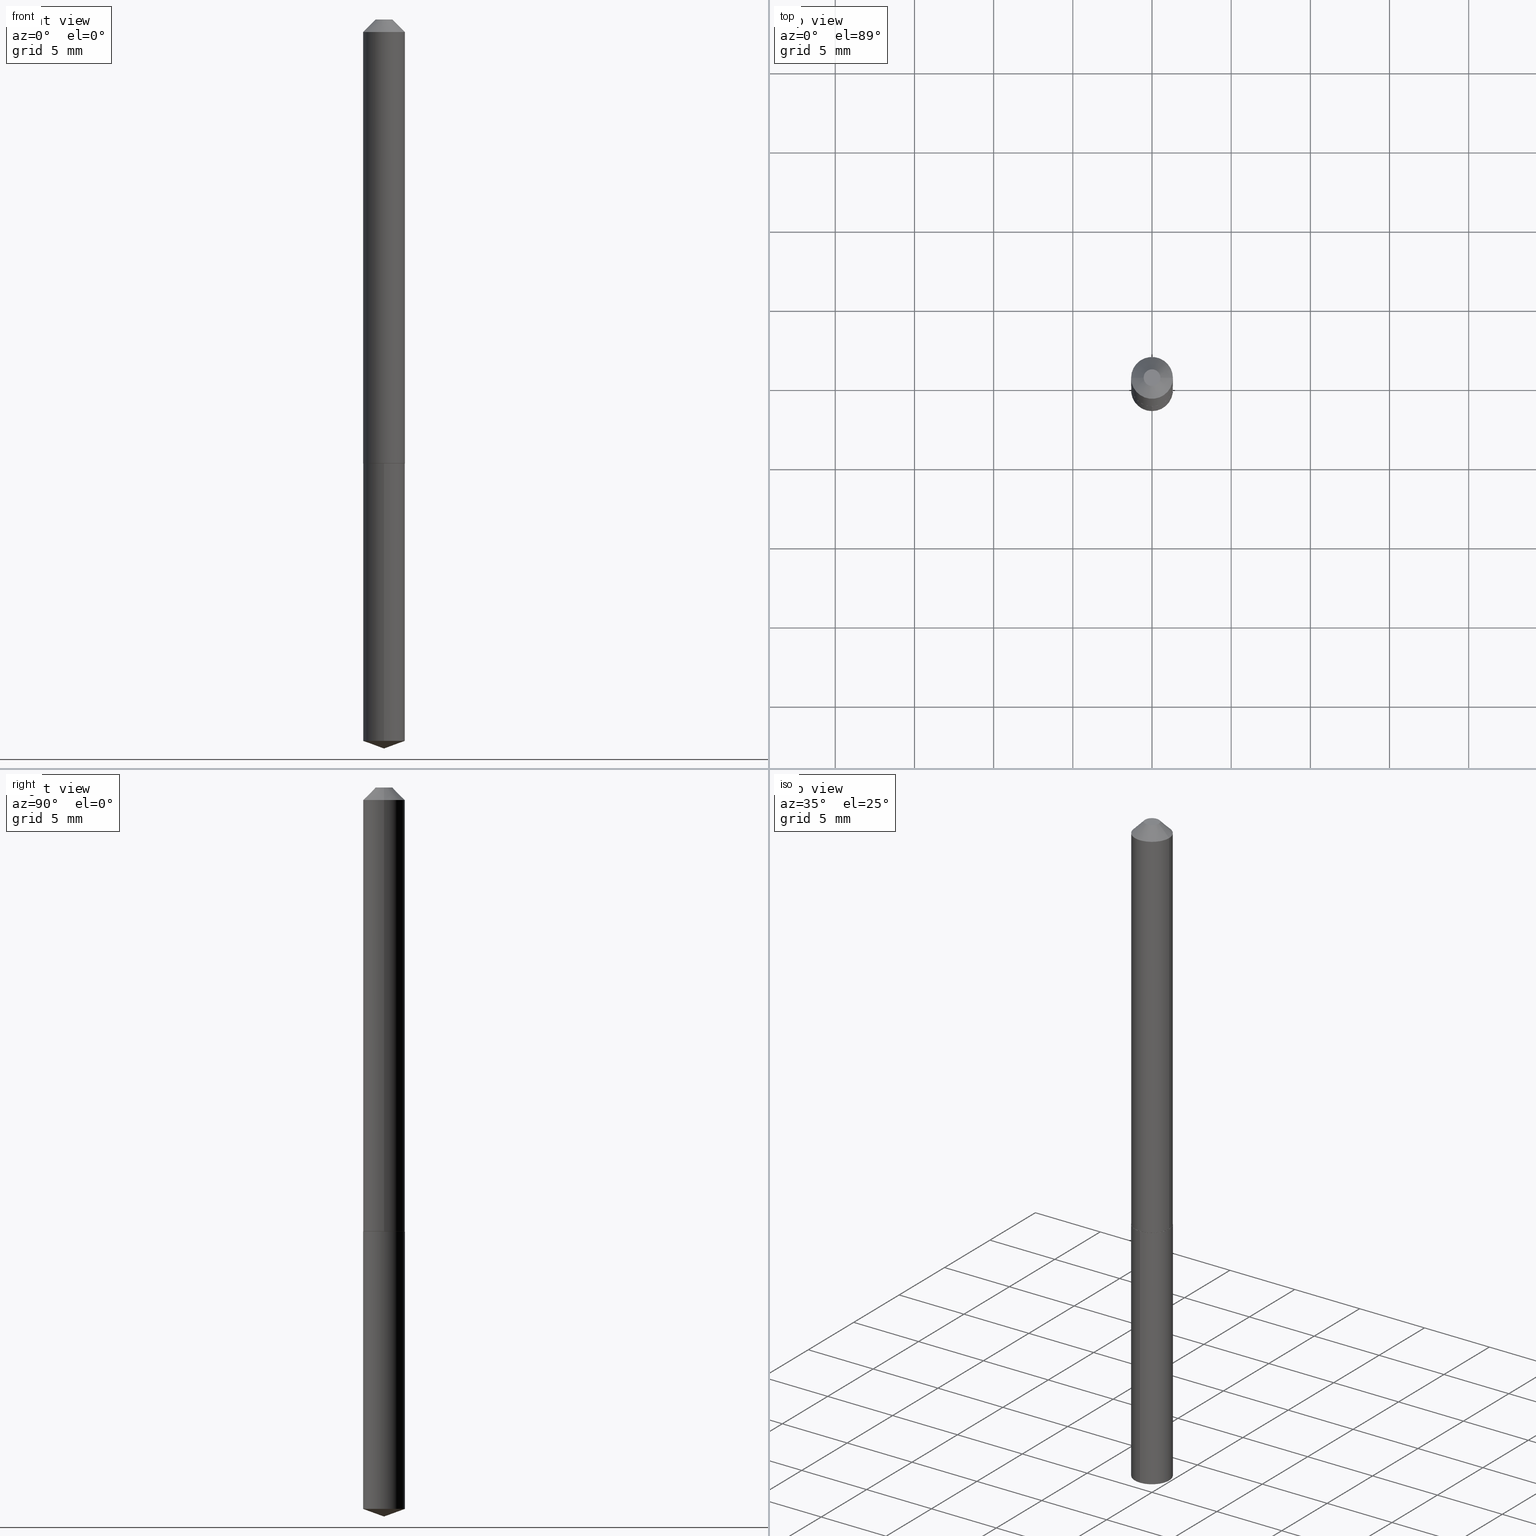
[diagram: canonical four-view strip — front | top / right | iso, engineering-drawing reading convention]
A machine part, canonical four-view strip (front | top / right | iso — engineering-drawing reading convention). The complete STEP part file that produces these views, byte-faithful:
ISO-10303-21;
HEADER;
FILE_DESCRIPTION (( 'STEP AP203' ),
    '1' );
FILE_NAME ('56246.STEP',
    '2024-04-22T21:25:25',
    ( '' ),
    ( '' ),
    'SwSTEP 2.0',
    'SolidWorks 2023',
    '' );
FILE_SCHEMA (( 'CONFIG_CONTROL_DESIGN' ));
ENDSEC;

DATA;
#1 = EDGE_CURVE ( 'NONE', #240, #31, #222, .T. ) ;
#2 = DIRECTION ( 'NONE',  ( 1.000000000000000000, -6.982962677686266711E-15, 4.876176775795935793E-29 ) ) ;
#3 = CYLINDRICAL_SURFACE ( 'NONE', #184, 0.05200000000000006700 ) ;
#4 = EDGE_CURVE ( 'NONE', #322, #31, #319, .T. ) ;
#5 = VERTEX_POINT ( 'NONE', #306 ) ;
#6 = DIRECTION ( 'NONE',  ( -2.445468806185136597E-29, 3.491481338843145583E-15, 1.000000000000000000 ) ) ;
#7 = ORIENTED_EDGE ( 'NONE', *, *, #267, .F. ) ;
#8 = PERSON_AND_ORGANIZATION_ROLE ( 'creator' ) ;
#9 = ORIENTED_EDGE ( 'NONE', *, *, #133, .F. ) ;
#10 = CIRCLE ( 'NONE', #388, 0.05200000000000000455 ) ;
#11 = LOCAL_TIME ( 17, 25, 25.00000000000000000, #107 ) ;
#12 = EDGE_CURVE ( 'NONE', #84, #72, #274, .T. ) ;
#13 = APPROVAL_ROLE ( '' ) ;
#14 =( NAMED_UNIT ( * ) SI_UNIT ( $, .STERADIAN. ) SOLID_ANGLE_UNIT ( ) );
#15 = APPROVAL_DATE_TIME ( #47, #26 ) ;
#16 = VERTEX_POINT ( 'NONE', #49 ) ;
#17 = AXIS2_PLACEMENT_3D ( 'NONE', #236, #179, #28 ) ;
#18 = AXIS2_PLACEMENT_3D ( 'NONE', #186, #158, #97 ) ;
#19 = ADVANCED_FACE ( 'NONE', ( #369 ), #86, .T. ) ;
#20 = EDGE_LOOP ( 'NONE', ( #205, #106, #214 ) ) ;
#21 = DIRECTION ( 'NONE',  ( 1.000000000000000000, -6.982962677686266711E-15, 0.000000000000000000 ) ) ;
#22 = LINE ( 'NONE', #381, #305 ) ;
#23 = CIRCLE ( 'NONE', #376, 0.02074999999999999414 ) ;
#24 = VECTOR ( 'NONE', #62, 39.37007874015748143 ) ;
#25 = APPLICATION_CONTEXT ( 'configuration controlled 3d designs of mechanical parts and assemblies' ) ;
#26 = APPROVAL ( #73, 'UNSPECIFIED' ) ;
#27 = DIRECTION ( 'NONE',  ( -2.445478414285621524E-29, 3.491467579496391943E-15, 1.000000000000000000 ) ) ;
#28 = DIRECTION ( 'NONE',  ( -6.982962677686267499E-15, -1.000000000000000000, 3.475157955500671305E-15 ) ) ;
#29 = DIRECTION ( 'NONE',  ( 1.000000000000000000, -6.982962677686265922E-15, 4.876176775795935793E-29 ) ) ;
#30 = CIRCLE ( 'NONE', #219, 0.05199999999999999067 ) ;
#31 = VERTEX_POINT ( 'NONE', #194 ) ;
#32 = CARTESIAN_POINT ( 'NONE',  ( -0.05200000000000012945, -3.483367434818158202E-15, -1.103500000000000147 ) ) ;
#33 = DIRECTION ( 'NONE',  ( -1.000000000000000000, 6.982962677686265922E-15, -4.876176775795935793E-29 ) ) ;
#34 = DIRECTION ( 'NONE',  ( -6.982962677686266711E-15, -1.000000000000000000, 2.626776916984868919E-15 ) ) ;
#35 = DIMENSIONAL_EXPONENTS ( 1.000000000000000000, 0.000000000000000000, 0.000000000000000000, 0.000000000000000000, 0.000000000000000000, 0.000000000000000000, 0.000000000000000000 ) ;
#36 = ORIENTED_EDGE ( 'NONE', *, *, #346, .F. ) ;
#37 = CONICAL_SURFACE ( 'NONE', #67, 0.05200000000000000455, 0.7853981633974450594 ) ;
#38 = DIRECTION ( 'NONE',  ( -2.445478414285621524E-29, 3.491467579496391943E-15, 1.000000000000000000 ) ) ;
#39 = CARTESIAN_POINT ( 'NONE',  ( 3.743544432386673062E-48, -5.344789307371237567E-34, -1.530808498934197508E-19 ) ) ;
#40 = DATE_AND_TIME ( #310, #11 ) ;
#41 = ORIENTED_EDGE ( 'NONE', *, *, #367, .T. ) ;
#42 = CALENDAR_DATE ( 2024, 22, 4 ) ;
#43 = ADVANCED_FACE ( 'NONE', ( #318 ), #85, .T. ) ;
#44 = CIRCLE ( 'NONE', #18, 0.05200000000000012945 ) ;
#45 = PERSON_AND_ORGANIZATION ( #119, #341 ) ;
#46 = PERSON_AND_ORGANIZATION ( #119, #341 ) ;
#47 = DATE_AND_TIME ( #197, #103 ) ;
#48 = EDGE_CURVE ( 'NONE', #5, #16, #211, .T. ) ;
#49 = CARTESIAN_POINT ( 'NONE',  ( 0.05200000000000012945, -4.215963716653098357E-15, -1.103500000000000147 ) ) ;
#50 = ORIENTED_EDGE ( 'NONE', *, *, #12, .T. ) ;
#51 = AXIS2_PLACEMENT_3D ( 'NONE', #382, #264, #384 ) ;
#52 = DIRECTION ( 'NONE',  ( -2.445478414285621524E-29, 3.491467579496391943E-15, 1.000000000000000000 ) ) ;
#53 = CARTESIAN_POINT ( 'NONE',  ( 2.699797562028391099E-29, -3.854595398082833708E-15, -1.104000000000000092 ) ) ;
#54 = ADVANCED_FACE ( 'NONE', ( #297 ), #58, .T. ) ;
#55 = CARTESIAN_POINT ( 'NONE',  ( 7.642090019328603538E-31, -1.091087918388490390E-16, -0.03125000000000021511 ) ) ;
#56 = CLOSED_SHELL ( 'NONE', ( #43, #60, #253, #159, #204 ) ) ;
#57 = APPROVAL_PERSON_ORGANIZATION ( #344, #26, #139 ) ;
#58 = CYLINDRICAL_SURFACE ( 'NONE', #354, 0.05200000000000006700 ) ;
#59 = CARTESIAN_POINT ( 'NONE',  ( 0.02074999999999999414, -3.041050105883639549E-16, -1.530808498918505513E-19 ) ) ;
#60 = ADVANCED_FACE ( 'NONE', ( #181 ), #293, .T. ) ;
#61 = EDGE_LOOP ( 'NONE', ( #91, #287, #141, #9 ) ) ;
#62 = DIRECTION ( 'NONE',  ( 6.676917655467980751E-15, 0.9396926207859114255, 0.3420201433256603307 ) ) ;
#63 = CARTESIAN_POINT ( 'NONE',  ( 0.05200000000000000455, -4.658546877229686859E-16, -0.03125000000000021511 ) ) ;
#64 = CARTESIAN_POINT ( 'NONE',  ( 4.432408411206818813E-29, -6.328315368474842651E-15, -1.812500000000000222 ) ) ;
#65 = CARTESIAN_POINT ( 'NONE',  ( 4.432429625892689766E-29, -6.328284987837211062E-15, -1.812500000000000222 ) ) ;
#66 = ORIENTED_EDGE ( 'NONE', *, *, #104, .F. ) ;
#67 = AXIS2_PLACEMENT_3D ( 'NONE', #207, #121, #81 ) ;
#68 = DIRECTION ( 'NONE',  ( -2.445468806185136877E-29, 3.491481338843145188E-15, 1.000000000000000000 ) ) ;
#69 = ORIENTED_EDGE ( 'NONE', *, *, #332, .F. ) ;
#70 = APPLICATION_PROTOCOL_DEFINITION ( 'international standard', 'config_control_design', 1994, #212 ) ;
#71 = ADVANCED_FACE ( 'NONE', ( #149 ), #191, .T. ) ;
#72 = VERTEX_POINT ( 'NONE', #176 ) ;
#73 = APPROVAL_STATUS ( 'not_yet_approved' ) ;
#74 = CIRCLE ( 'NONE', #138, 0.05200000000000000455 ) ;
#75 = APPROVAL_STATUS ( 'not_yet_approved' ) ;
#76 = COORDINATED_UNIVERSAL_TIME_OFFSET ( 5, 0, .BEHIND. ) ;
#77 = SHAPE_DEFINITION_REPRESENTATION ( #217, #276 ) ;
#78 = ORIENTED_EDGE ( 'NONE', *, *, #117, .T. ) ;
#79 = AXIS2_PLACEMENT_3D ( 'NONE', #125, #221, #277 ) ;
#80 = DIRECTION ( 'NONE',  ( -2.445478414285621524E-29, 3.491467579496391943E-15, 1.000000000000000000 ) ) ;
#81 = DIRECTION ( 'NONE',  ( -1.000000000000000000, 6.982962677686266711E-15, 0.000000000000000000 ) ) ;
#82 = CC_DESIGN_DATE_AND_TIME_ASSIGNMENT ( #373, #202, ( #198 ) ) ;
#83 = FACE_OUTER_BOUND ( 'NONE', #61, .T. ) ;
#84 = VERTEX_POINT ( 'NONE', #59 ) ;
#85 = CYLINDRICAL_SURFACE ( 'NONE', #262, 0.05199999999999999067 ) ;
#86 = CONICAL_SURFACE ( 'NONE', #199, 0.05200000000000012945, 0.7853981633976275800 ) ;
#87 = ADVANCED_FACE ( 'NONE', ( #266 ), #37, .T. ) ;
#88 = CARTESIAN_POINT ( 'NONE',  ( -0.05200000000000012945, -3.483367434818158202E-15, -1.103500000000000147 ) ) ;
#89 = ORIENTED_EDGE ( 'NONE', *, *, #263, .T. ) ;
#90 = DIRECTION ( 'NONE',  ( -2.445478414285621524E-29, 3.491467579496391943E-15, 1.000000000000000000 ) ) ;
#91 = ORIENTED_EDGE ( 'NONE', *, *, #137, .F. ) ;
#92 = LINE ( 'NONE', #63, #220 ) ;
#93 = LOCAL_TIME ( 17, 25, 25.00000000000000000, #232 ) ;
#94 = PLANE ( 'NONE',  #79 ) ;
#95 = CC_DESIGN_DATE_AND_TIME_ASSIGNMENT ( #109, #163, ( #362 ) ) ;
#96 = VERTEX_POINT ( 'NONE', #265 ) ;
#97 = DIRECTION ( 'NONE',  ( 1.000000000000000000, -6.982962677686269077E-15, 0.000000000000000000 ) ) ;
#98 = MANIFOLD_SOLID_BREP ( 'Body-Move/Copy2[2]', #288 ) ;
#99 = EDGE_LOOP ( 'NONE', ( #366, #50 ) ) ;
#100 = DIRECTION ( 'NONE',  ( -2.445468806185136597E-29, 3.491481338843145583E-15, 1.000000000000000000 ) ) ;
#101 = DIRECTION ( 'NONE',  ( -2.445468806185136597E-29, 3.491481338843145583E-15, 1.000000000000000000 ) ) ;
#102 = CONICAL_SURFACE ( 'NONE', #314, 108.1684023407349855, 1.221730476396036158 ) ;
#103 = LOCAL_TIME ( 17, 25, 25.00000000000000000, #375 ) ;
#104 = EDGE_CURVE ( 'NONE', #31, #338, #115, .T. ) ;
#105 = APPROVAL_STATUS ( 'not_yet_approved' ) ;
#106 = ORIENTED_EDGE ( 'NONE', *, *, #1, .T. ) ;
#107 = COORDINATED_UNIVERSAL_TIME_OFFSET ( 5, 0, .BEHIND. ) ;
#108 = APPLICATION_PROTOCOL_DEFINITION ( 'international standard', 'config_control_design', 1994, #25 ) ;
#109 = DATE_AND_TIME ( #42, #93 ) ;
#110 = UNCERTAINTY_MEASURE_WITH_UNIT (LENGTH_MEASURE( 1.000000000000000082E-05 ), #254, 'distance_accuracy_value', 'NONE');
#111 = CALENDAR_DATE ( 2024, 22, 4 ) ;
#112 = ORIENTED_EDGE ( 'NONE', *, *, #301, .T. ) ;
#113 = CARTESIAN_POINT ( 'NONE',  ( 7.642090019328603538E-31, -1.091087918388490390E-16, -0.03125000000000021511 ) ) ;
#114 = DIRECTION ( 'NONE',  ( -0.7071067811866742492, 7.493145998870811699E-15, 0.7071067811864207853 ) ) ;
#115 = LINE ( 'NONE', #351, #348 ) ;
#116 = CARTESIAN_POINT ( 'NONE',  ( 2.698574827625298297E-29, -3.852849657413411415E-15, -1.103500000000000147 ) ) ;
#117 = EDGE_CURVE ( 'NONE', #5, #96, #183, .T. ) ;
#118 = EDGE_LOOP ( 'NONE', ( #372, #162, #329, #171 ) ) ;
#119 = PERSON ( 'UNSPECIFIED', 'UNSPECIFIED', 'UNSPECIFIED', ('UNSPECIFIED'), ('UNSPECIFIED'), ('UNSPECIFIED') ) ;
#120 = DESIGN_CONTEXT ( 'detailed design', #212, 'design' ) ;
#121 = DIRECTION ( 'NONE',  ( 2.445468806185136597E-29, -3.491481338843145583E-15, -1.000000000000000000 ) ) ;
#122 = AXIS2_PLACEMENT_3D ( 'NONE', #312, #188, #331 ) ;
#123 = CC_DESIGN_APPROVAL ( #238, ( #283 ) ) ;
#124 = ORIENTED_EDGE ( 'NONE', *, *, #301, .F. ) ;
#125 = CARTESIAN_POINT ( 'NONE',  ( 2.699797562028391099E-29, -3.854595398082833708E-15, -1.104000000000000092 ) ) ;
#126 = DIRECTION ( 'NONE',  ( -6.982962677686266711E-15, -1.000000000000000000, 5.253553833969737838E-15 ) ) ;
#127 = CARTESIAN_POINT ( 'NONE',  ( 4.432429811920442452E-29, -6.328284987837211851E-15, -1.812500000000000222 ) ) ;
#128 = EDGE_CURVE ( 'NONE', #72, #84, #23, .T. ) ;
#129 = DIRECTION ( 'NONE',  ( -6.982962677686266711E-15, -1.000000000000000000, 2.626776916984868919E-15 ) ) ;
#130 = EDGE_LOOP ( 'NONE', ( #78, #233, #134, #140 ) ) ;
#131 = CARTESIAN_POINT ( 'NONE',  ( 2.699797562028391099E-29, -3.854595398082832919E-15, -1.104000000000000092 ) ) ;
#132 = ORIENTED_EDGE ( 'NONE', *, *, #216, .T. ) ;
#133 = EDGE_CURVE ( 'NONE', #280, #16, #340, .T. ) ;
#134 = ORIENTED_EDGE ( 'NONE', *, *, #281, .F. ) ;
#135 = CIRCLE ( 'NONE', #282, 0.05199999999999999067 ) ;
#136 =( NAMED_UNIT ( * ) PLANE_ANGLE_UNIT ( ) SI_UNIT ( $, .RADIAN. ) );
#137 = EDGE_CURVE ( 'NONE', #96, #280, #356, .T. ) ;
#138 = AXIS2_PLACEMENT_3D ( 'NONE', #113, #347, #21 ) ;
#139 = APPROVAL_ROLE ( '' ) ;
#140 = ORIENTED_EDGE ( 'NONE', *, *, #48, .F. ) ;
#141 = ORIENTED_EDGE ( 'NONE', *, *, #48, .T. ) ;
#142 = ADVANCED_FACE ( 'NONE', ( #350 ), #145, .F. ) ;
#143 = DIRECTION ( 'NONE',  ( 1.000000000000000000, -6.982962677686266711E-15, 4.876176775795935793E-29 ) ) ;
#144 = VECTOR ( 'NONE', #196, 39.37007874015748854 ) ;
#145 = PLANE ( 'NONE',  #175 ) ;
#146 = AXIS2_PLACEMENT_3D ( 'NONE', #302, #215, #34 ) ;
#147 = DIRECTION ( 'NONE',  ( 1.000000000000000000, -6.982962677686265922E-15, 4.876174938203531473E-29 ) ) ;
#148 = CC_DESIGN_PERSON_AND_ORGANIZATION_ASSIGNMENT ( #46, #284, ( #283 ) ) ;
#149 = FACE_OUTER_BOUND ( 'NONE', #249, .T. ) ;
#150 = ORIENTED_EDGE ( 'NONE', *, *, #346, .T. ) ;
#151 = CARTESIAN_POINT ( 'NONE',  ( 3.694822225952959601E-16, 0.05199999999999374567, -1.793573547818158254 ) ) ;
#152 = CARTESIAN_POINT ( 'NONE',  ( 1.871772216193336531E-48, -2.672394653685618784E-34, -7.654042494670987541E-20 ) ) ;
#153 = CC_DESIGN_PERSON_AND_ORGANIZATION_ASSIGNMENT ( #339, #203, ( #270 ) ) ;
#154 = DIRECTION ( 'NONE',  ( 1.000000000000000000, -6.982962677686266711E-15, 0.000000000000000000 ) ) ;
#155 =( LENGTH_UNIT ( ) NAMED_UNIT ( * ) SI_UNIT ( $, .METRE. ) );
#156 = VECTOR ( 'NONE', #173, 39.37007874015748143 ) ;
#157 = ORIENTED_EDGE ( 'NONE', *, *, #128, .F. ) ;
#158 = DIRECTION ( 'NONE',  ( -2.445468806185136597E-29, 3.491481338843145583E-15, 1.000000000000000000 ) ) ;
#159 = ADVANCED_FACE ( 'NONE', ( #213 ), #317, .T. ) ;
#160 = DIRECTION ( 'NONE',  ( -2.445468806185136597E-29, 3.491481338843145583E-15, 1.000000000000000000 ) ) ;
#161 = APPROVAL_DATE_TIME ( #201, #185 ) ;
#162 = ORIENTED_EDGE ( 'NONE', *, *, #133, .T. ) ;
#163 = DATE_TIME_ROLE ( 'classification_date' ) ;
#164 = PERSON_AND_ORGANIZATION ( #119, #341 ) ;
#165 = EDGE_CURVE ( 'NONE', #72, #180, #22, .T. ) ;
#166 = APPROVAL_DATE_TIME ( #40, #238 ) ;
#167 = APPROVAL_ROLE ( '' ) ;
#168 = CARTESIAN_POINT ( 'NONE',  ( 2.698574827625298297E-29, -3.852849657413411415E-15, -1.103500000000000147 ) ) ;
#169 = VECTOR ( 'NONE', #114, 39.37007874015748143 ) ;
#170 = VECTOR ( 'NONE', #368, 39.37007874015748143 ) ;
#171 = ORIENTED_EDGE ( 'NONE', *, *, #216, .F. ) ;
#172 = EDGE_CURVE ( 'NONE', #308, #180, #74, .T. ) ;
#173 = DIRECTION ( 'NONE',  ( 0.7071067811866742492, -2.468850131083584319E-15, 0.7071067811864207853 ) ) ;
#174 = DIRECTION ( 'NONE',  ( -1.000000000000000000, 6.982962677686266711E-15, 0.000000000000000000 ) ) ;
#175 = AXIS2_PLACEMENT_3D ( 'NONE', #352, #315, #29 ) ;
#176 = CARTESIAN_POINT ( 'NONE',  ( -0.02074999999999999414, 1.994508714814133894E-16, -1.530808498946235774E-19 ) ) ;
#177 = APPROVAL_PERSON_ORGANIZATION ( #286, #238, #13 ) ;
#178 = ORIENTED_EDGE ( 'NONE', *, *, #104, .T. ) ;
#179 = DIRECTION ( 'NONE',  ( -2.445478414285621524E-29, 3.491467579496391943E-15, 1.000000000000000000 ) ) ;
#180 = VERTEX_POINT ( 'NONE', #261 ) ;
#181 = FACE_OUTER_BOUND ( 'NONE', #296, .T. ) ;
#182 = CARTESIAN_POINT ( 'NONE',  ( 3.694822225952789996E-16, 0.05199999999999613265, -1.104000000000000314 ) ) ;
#183 = CIRCLE ( 'NONE', #334, 0.05150000000000005268 ) ;
#184 = AXIS2_PLACEMENT_3D ( 'NONE', #190, #6, #2 ) ;
#185 = APPROVAL ( #75, 'UNSPECIFIED' ) ;
#186 = CARTESIAN_POINT ( 'NONE',  ( 2.698574827625298297E-29, -3.852849657413411415E-15, -1.103500000000000147 ) ) ;
#187 = CARTESIAN_POINT ( 'NONE',  ( 2.699797562028391099E-29, -3.854595398082833708E-15, -1.104000000000000092 ) ) ;
#188 = DIRECTION ( 'NONE',  ( -2.445478414285621524E-29, 3.491467579496391943E-15, 1.000000000000000000 ) ) ;
#189 = ADVANCED_FACE ( 'NONE', ( #83 ), #226, .T. ) ;
#190 = CARTESIAN_POINT ( 'NONE',  ( 0.000000000000000000, 0.000000000000000000, 0.000000000000000000 ) ) ;
#191 = CONICAL_SURFACE ( 'NONE', #241, 0.05200000000000000455, 0.7853981633974450594 ) ;
#192 = ORIENTED_EDGE ( 'NONE', *, *, #165, .F. ) ;
#193 = DIRECTION ( 'NONE',  ( 2.438088387897960049E-29, -3.491481338843145188E-15, -1.000000000000000000 ) ) ;
#194 = CARTESIAN_POINT ( 'NONE',  ( -3.631140592396419767E-16, -0.05200000000000627731, -1.793573547818157587 ) ) ;
#195 = PERSON_AND_ORGANIZATION ( #119, #341 ) ;
#196 = DIRECTION ( 'NONE',  ( -6.561838499445213473E-15, -0.9396926207859090940, 0.3420201433256668810 ) ) ;
#197 = CALENDAR_DATE ( 2024, 22, 4 ) ;
#198 = PRODUCT_DEFINITION ( 'UNKNOWN', '', #283, #120 ) ;
#199 = AXIS2_PLACEMENT_3D ( 'NONE', #168, #101, #336 ) ;
#200 = VECTOR ( 'NONE', #300, 39.37007874015748143 ) ;
#201 = DATE_AND_TIME ( #343, #257 ) ;
#202 = DATE_TIME_ROLE ( 'creation_date' ) ;
#203 = PERSON_AND_ORGANIZATION_ROLE ( 'design_owner' ) ;
#204 = ADVANCED_FACE ( 'NONE', ( #365 ), #94, .F. ) ;
#205 = ORIENTED_EDGE ( 'NONE', *, *, #367, .F. ) ;
#206 = AXIS2_PLACEMENT_3D ( 'NONE', #131, #100, #248 ) ;
#207 = CARTESIAN_POINT ( 'NONE',  ( 7.642090019328603538E-31, -1.091087918388490390E-16, -0.03125000000000021511 ) ) ;
#208 = DIRECTION ( 'NONE',  ( -2.445468806185136597E-29, 3.491481338843145583E-15, 1.000000000000000000 ) ) ;
#209 = DIRECTION ( 'NONE',  ( -2.445468806185136597E-29, 3.491481338843145583E-15, 1.000000000000000000 ) ) ;
#210 = ORIENTED_EDGE ( 'NONE', *, *, #12, .F. ) ;
#211 = LINE ( 'NONE', #321, #156 ) ;
#212 = APPLICATION_CONTEXT ( 'configuration controlled 3d designs of mechanical parts and assemblies' ) ;
#213 = FACE_OUTER_BOUND ( 'NONE', #278, .T. ) ;
#214 = ORIENTED_EDGE ( 'NONE', *, *, #4, .F. ) ;
#215 = DIRECTION ( 'NONE',  ( -2.445478414285621524E-29, 3.491467579496391943E-15, 1.000000000000000000 ) ) ;
#216 = EDGE_CURVE ( 'NONE', #180, #308, #10, .T. ) ;
#217 = PRODUCT_DEFINITION_SHAPE ( 'NONE', 'NONE',  #198 ) ;
#218 = ORIENTED_EDGE ( 'NONE', *, *, #256, .F. ) ;
#219 = AXIS2_PLACEMENT_3D ( 'NONE', #187, #38, #129 ) ;
#220 = VECTOR ( 'NONE', #269, 39.37007874015748143 ) ;
#221 = DIRECTION ( 'NONE',  ( 2.445478414285621244E-29, -3.491467579496391943E-15, -1.000000000000000000 ) ) ;
#222 = LINE ( 'NONE', #64, #144 ) ;
#223 = LINE ( 'NONE', #182, #170 ) ;
#224 = EDGE_LOOP ( 'NONE', ( #69, #157, #353, #132 ) ) ;
#225 = CARTESIAN_POINT ( 'NONE',  ( 0.05200000000000000455, -4.722228510785349578E-16, -0.03125000000000021511 ) ) ;
#226 = CONICAL_SURFACE ( 'NONE', #51, 0.05200000000000012945, 0.7853981633976275800 ) ;
#227 = ORIENTED_EDGE ( 'NONE', *, *, #172, .T. ) ;
#228 = CC_DESIGN_SECURITY_CLASSIFICATION ( #362, ( #283 ) ) ;
#229 = ORIENTED_EDGE ( 'NONE', *, *, #263, .F. ) ;
#230 = SECURITY_CLASSIFICATION_LEVEL ( 'unclassified' ) ;
#231 = CARTESIAN_POINT ( 'NONE',  ( 0.000000000000000000, 0.000000000000000000, 0.000000000000000000 ) ) ;
#232 = COORDINATED_UNIVERSAL_TIME_OFFSET ( 5, 0, .BEHIND. ) ;
#233 = ORIENTED_EDGE ( 'NONE', *, *, #137, .T. ) ;
#234 = DIRECTION ( 'NONE',  ( -2.445468806185136597E-29, 3.491481338843145583E-15, 1.000000000000000000 ) ) ;
#235 = MANIFOLD_SOLID_BREP ( 'Body-Move/Copy2[1]', #56 ) ;
#236 = CARTESIAN_POINT ( 'NONE',  ( -9.184625870923062997E-28, 1.311310533453239735E-13, 37.55757874015748143 ) ) ;
#237 = CARTESIAN_POINT ( 'NONE',  ( 3.743544432386673062E-48, -5.344789307371237567E-34, -1.530808498934197508E-19 ) ) ;
#238 = APPROVAL ( #105, 'UNSPECIFIED' ) ;
#239 = CARTESIAN_POINT ( 'NONE',  ( 2.699797562028391099E-29, -3.854595398082833708E-15, -1.104000000000000092 ) ) ;
#240 = VERTEX_POINT ( 'NONE', #65 ) ;
#241 = AXIS2_PLACEMENT_3D ( 'NONE', #55, #323, #174 ) ;
#242 = DIRECTION ( 'NONE',  ( 1.000000000000000000, -6.982962677686269077E-15, 0.000000000000000000 ) ) ;
#243 =( GEOMETRIC_REPRESENTATION_CONTEXT ( 3 ) GLOBAL_UNCERTAINTY_ASSIGNED_CONTEXT ( ( #110 ) ) GLOBAL_UNIT_ASSIGNED_CONTEXT ( ( #254, #136, #14 ) ) REPRESENTATION_CONTEXT ( 'NONE', 'WORKASPACE' ) );
#244 = PLANE ( 'NONE',  #383 ) ;
#245 = DIRECTION ( 'NONE',  ( -2.445468806185136597E-29, 3.491481338843145583E-15, 1.000000000000000000 ) ) ;
#246 = LENGTH_MEASURE_WITH_UNIT ( LENGTH_MEASURE( 0.02539999999999999897 ), #155 );
#247 = AXIS2_PLACEMENT_3D ( 'NONE', #53, #80, #260 ) ;
#248 = DIRECTION ( 'NONE',  ( 1.000000000000000000, -6.982962677686269077E-15, 0.000000000000000000 ) ) ;
#249 = EDGE_LOOP ( 'NONE', ( #210, #313, #227, #192 ) ) ;
#250 = CARTESIAN_POINT ( 'NONE',  ( 4.386134788280050276E-29, -6.262219083968236584E-15, -1.793573547818158032 ) ) ;
#251 = DIRECTION ( 'NONE',  ( 1.000000000000000000, -6.982962677686265922E-15, 4.876174938203531473E-29 ) ) ;
#252 = ORIENTED_EDGE ( 'NONE', *, *, #316, .T. ) ;
#253 = ADVANCED_FACE ( 'NONE', ( #273 ), #102, .T. ) ;
#254 =( CONVERSION_BASED_UNIT ( 'INCH', #246 ) LENGTH_UNIT ( ) NAMED_UNIT ( #35 ) );
#255 = MECHANICAL_CONTEXT ( 'NONE', #25, 'mechanical' ) ;
#256 = EDGE_CURVE ( 'NONE', #96, #5, #268, .T. ) ;
#257 = LOCAL_TIME ( 17, 25, 25.00000000000000000, #337 ) ;
#258 = DIRECTION ( 'NONE',  ( 1.000000000000000000, 0.000000000000000000, 0.000000000000000000 ) ) ;
#259 = ORIENTED_EDGE ( 'NONE', *, *, #172, .F. ) ;
#260 = DIRECTION ( 'NONE',  ( -6.982962677686266711E-15, -1.000000000000000000, 2.626776916984868919E-15 ) ) ;
#261 = CARTESIAN_POINT ( 'NONE',  ( -0.05200000000000000455, -1.611497002030876847E-15, -0.03125000000000021511 ) ) ;
#262 = AXIS2_PLACEMENT_3D ( 'NONE', #239, #52, #295 ) ;
#263 = EDGE_CURVE ( 'NONE', #338, #379, #30, .T. ) ;
#264 = DIRECTION ( 'NONE',  ( -2.445468806185136597E-29, 3.491481338843145583E-15, 1.000000000000000000 ) ) ;
#265 = CARTESIAN_POINT ( 'NONE',  ( -0.05150000000000005268, -3.486016661992269797E-15, -1.104000000000000092 ) ) ;
#266 = FACE_OUTER_BOUND ( 'NONE', #224, .T. ) ;
#267 = EDGE_CURVE ( 'NONE', #31, #322, #135, .T. ) ;
#268 = CIRCLE ( 'NONE', #206, 0.05150000000000005268 ) ;
#269 = DIRECTION ( 'NONE',  ( 0.7071067811865452413, -7.319954787623248157E-15, -0.7071067811865497932 ) ) ;
#270 = PRODUCT ( '56246', '56246', '', ( #255 ) ) ;
#271 = CARTESIAN_POINT ( 'NONE',  ( 3.694822225952959601E-16, 0.05199999999999613265, -1.104000000000000314 ) ) ;
#272 = LINE ( 'NONE', #127, #24 ) ;
#273 = FACE_OUTER_BOUND ( 'NONE', #20, .T. ) ;
#274 = CIRCLE ( 'NONE', #361, 0.02074999999999999414 ) ;
#275 = EDGE_LOOP ( 'NONE', ( #89, #150 ) ) ;
#276 = ADVANCED_BREP_SHAPE_REPRESENTATION ( '56246', ( #235, #98, #335 ), #243 ) ;
#277 = DIRECTION ( 'NONE',  ( 6.982962677686265922E-15, 1.000000000000000000, -3.491467579496391943E-15 ) ) ;
#278 = EDGE_LOOP ( 'NONE', ( #124, #303, #178, #36 ) ) ;
#279 = DIRECTION ( 'NONE',  ( 0.000000000000000000, 0.000000000000000000, 1.000000000000000000 ) ) ;
#280 = VERTEX_POINT ( 'NONE', #32 ) ;
#281 = EDGE_CURVE ( 'NONE', #16, #280, #44, .T. ) ;
#282 = AXIS2_PLACEMENT_3D ( 'NONE', #250, #90, #126 ) ;
#283 = PRODUCT_DEFINITION_FORMATION_WITH_SPECIFIED_SOURCE ( 'ANY', '', #270, .NOT_KNOWN. ) ;
#284 = PERSON_AND_ORGANIZATION_ROLE ( 'design_supplier' ) ;
#285 = ADVANCED_FACE ( 'NONE', ( #307 ), #3, .T. ) ;
#286 = PERSON_AND_ORGANIZATION ( #119, #341 ) ;
#287 = ORIENTED_EDGE ( 'NONE', *, *, #256, .T. ) ;
#288 = CLOSED_SHELL ( 'NONE', ( #71, #54, #19, #142, #189, #285, #87, #320 ) ) ;
#289 = CC_DESIGN_APPROVAL ( #26, ( #362 ) ) ;
#290 = ORIENTED_EDGE ( 'NONE', *, *, #1, .F. ) ;
#291 = DIRECTION ( 'NONE',  ( -0.7071067811865452413, 2.468850131082233000E-15, -0.7071067811865497932 ) ) ;
#292 = DIRECTION ( 'NONE',  ( 1.000000000000000000, -6.982962677686269077E-15, 0.000000000000000000 ) ) ;
#293 = CONICAL_SURFACE ( 'NONE', #17, 108.1684023407349855, 1.221730476396036158 ) ;
#294 = CIRCLE ( 'NONE', #146, 0.05199999999999999067 ) ;
#295 = DIRECTION ( 'NONE',  ( -6.982962677686266711E-15, -1.000000000000000000, 2.626776916984868919E-15 ) ) ;
#296 = EDGE_LOOP ( 'NONE', ( #290, #41, #7 ) ) ;
#297 = FACE_OUTER_BOUND ( 'NONE', #364, .T. ) ;
#298 = DIRECTION ( 'NONE',  ( -2.445468806185136597E-29, 3.491481338843145583E-15, 1.000000000000000000 ) ) ;
#299 = ORIENTED_EDGE ( 'NONE', *, *, #281, .T. ) ;
#300 = DIRECTION ( 'NONE',  ( -2.445468806185136877E-29, 3.491481338843145188E-15, 1.000000000000000000 ) ) ;
#301 = EDGE_CURVE ( 'NONE', #322, #379, #223, .T. ) ;
#302 = CARTESIAN_POINT ( 'NONE',  ( 2.699797562028391099E-29, -3.854595398082833708E-15, -1.104000000000000092 ) ) ;
#303 = ORIENTED_EDGE ( 'NONE', *, *, #4, .T. ) ;
#304 = FACE_OUTER_BOUND ( 'NONE', #99, .T. ) ;
#305 = VECTOR ( 'NONE', #291, 39.37007874015748143 ) ;
#306 = CARTESIAN_POINT ( 'NONE',  ( 0.05150000000000005268, -4.214217975983676065E-15, -1.104000000000000092 ) ) ;
#307 = FACE_OUTER_BOUND ( 'NONE', #118, .T. ) ;
#308 = VERTEX_POINT ( 'NONE', #225 ) ;
#309 = PERSON_AND_ORGANIZATION_ROLE ( 'classification_officer' ) ;
#310 = CALENDAR_DATE ( 2024, 22, 4 ) ;
#311 = CC_DESIGN_PERSON_AND_ORGANIZATION_ASSIGNMENT ( #164, #309, ( #362 ) ) ;
#312 = CARTESIAN_POINT ( 'NONE',  ( 4.386134788280050276E-29, -6.262219083968236584E-15, -1.793573547818158032 ) ) ;
#313 = ORIENTED_EDGE ( 'NONE', *, *, #332, .T. ) ;
#314 = AXIS2_PLACEMENT_3D ( 'NONE', #333, #330, #358 ) ;
#315 = DIRECTION ( 'NONE',  ( -2.438088387897960049E-29, 3.491481338843145188E-15, 1.000000000000000000 ) ) ;
#316 = EDGE_CURVE ( 'NONE', #280, #180, #328, .T. ) ;
#317 = CYLINDRICAL_SURFACE ( 'NONE', #247, 0.05199999999999999067 ) ;
#318 = FACE_OUTER_BOUND ( 'NONE', #387, .T. ) ;
#319 = CIRCLE ( 'NONE', #122, 0.05199999999999999067 ) ;
#320 = ADVANCED_FACE ( 'NONE', ( #304 ), #244, .F. ) ;
#321 = CARTESIAN_POINT ( 'NONE',  ( 0.05200000000000012945, -4.215963716653098357E-15, -1.103500000000000147 ) ) ;
#322 = VERTEX_POINT ( 'NONE', #151 ) ;
#323 = DIRECTION ( 'NONE',  ( 2.445468806185136597E-29, -3.491481338843145583E-15, -1.000000000000000000 ) ) ;
#324 = ORIENTED_EDGE ( 'NONE', *, *, #267, .T. ) ;
#325 = CARTESIAN_POINT ( 'NONE',  ( -3.631140592396587893E-16, -0.05200000000000384870, -1.104000000000000092 ) ) ;
#326 = ORIENTED_EDGE ( 'NONE', *, *, #117, .F. ) ;
#327 = LINE ( 'NONE', #390, #200 ) ;
#328 = LINE ( 'NONE', #363, #377 ) ;
#329 = ORIENTED_EDGE ( 'NONE', *, *, #374, .T. ) ;
#330 = DIRECTION ( 'NONE',  ( -2.445478414285621524E-29, 3.491467579496391943E-15, 1.000000000000000000 ) ) ;
#331 = DIRECTION ( 'NONE',  ( -6.982962677686266711E-15, -1.000000000000000000, 5.253553833969737838E-15 ) ) ;
#332 = EDGE_CURVE ( 'NONE', #84, #308, #92, .T. ) ;
#333 = CARTESIAN_POINT ( 'NONE',  ( -9.184625870923062997E-28, 1.311310533453239735E-13, 37.55757874015748143 ) ) ;
#334 = AXIS2_PLACEMENT_3D ( 'NONE', #385, #208, #242 ) ;
#335 = AXIS2_PLACEMENT_3D ( 'NONE', #231, #279, #258 ) ;
#336 = DIRECTION ( 'NONE',  ( 1.000000000000000000, -6.982962677686269077E-15, 0.000000000000000000 ) ) ;
#337 = COORDINATED_UNIVERSAL_TIME_OFFSET ( 5, 0, .BEHIND. ) ;
#338 = VERTEX_POINT ( 'NONE', #325 ) ;
#339 = PERSON_AND_ORGANIZATION ( #119, #341 ) ;
#340 = CIRCLE ( 'NONE', #370, 0.05200000000000012945 ) ;
#341 = ORGANIZATION ( 'UNSPECIFIED', 'UNSPECIFIED', '' ) ;
#342 = PRODUCT_RELATED_PRODUCT_CATEGORY ( 'detail', '', ( #270 ) ) ;
#343 = CALENDAR_DATE ( 2024, 22, 4 ) ;
#344 = PERSON_AND_ORGANIZATION ( #119, #341 ) ;
#345 = EDGE_LOOP ( 'NONE', ( #326, #218 ) ) ;
#346 = EDGE_CURVE ( 'NONE', #379, #338, #294, .T. ) ;
#347 = DIRECTION ( 'NONE',  ( -2.445468806185136597E-29, 3.491481338843145583E-15, 1.000000000000000000 ) ) ;
#348 = VECTOR ( 'NONE', #27, 39.37007874015748143 ) ;
#349 = APPROVAL_PERSON_ORGANIZATION ( #45, #185, #167 ) ;
#350 = FACE_OUTER_BOUND ( 'NONE', #345, .T. ) ;
#351 = CARTESIAN_POINT ( 'NONE',  ( -3.631140592396587893E-16, -0.05200000000000384870, -1.104000000000000092 ) ) ;
#352 = CARTESIAN_POINT ( 'NONE',  ( 2.699797562028391099E-29, -3.854595398082832919E-15, -1.104000000000000092 ) ) ;
#353 = ORIENTED_EDGE ( 'NONE', *, *, #165, .T. ) ;
#354 = AXIS2_PLACEMENT_3D ( 'NONE', #386, #234, #143 ) ;
#355 = LOCAL_TIME ( 17, 25, 25.00000000000000000, #76 ) ;
#356 = LINE ( 'NONE', #88, #169 ) ;
#357 = ORIENTED_EDGE ( 'NONE', *, *, #374, .F. ) ;
#358 = DIRECTION ( 'NONE',  ( -6.982962677686267499E-15, -1.000000000000000000, 3.475157955500671305E-15 ) ) ;
#359 = CARTESIAN_POINT ( 'NONE',  ( 7.642090019328603538E-31, -1.091087918388490390E-16, -0.03125000000000021511 ) ) ;
#360 = CC_DESIGN_PERSON_AND_ORGANIZATION_ASSIGNMENT ( #371, #378, ( #198 ) ) ;
#361 = AXIS2_PLACEMENT_3D ( 'NONE', #39, #160, #251 ) ;
#362 = SECURITY_CLASSIFICATION ( '', '', #230 ) ;
#363 = CARTESIAN_POINT ( 'NONE',  ( -0.05200000000000006700, 3.694822225952525727E-16, -2.557846246932554274E-30 ) ) ;
#364 = EDGE_LOOP ( 'NONE', ( #299, #252, #259, #357 ) ) ;
#365 = FACE_OUTER_BOUND ( 'NONE', #275, .T. ) ;
#366 = ORIENTED_EDGE ( 'NONE', *, *, #128, .T. ) ;
#367 = EDGE_CURVE ( 'NONE', #240, #322, #272, .T. ) ;
#368 = DIRECTION ( 'NONE',  ( -2.445478414285621524E-29, 3.491467579496391943E-15, 1.000000000000000000 ) ) ;
#369 = FACE_OUTER_BOUND ( 'NONE', #130, .T. ) ;
#370 = AXIS2_PLACEMENT_3D ( 'NONE', #116, #209, #292 ) ;
#371 = PERSON_AND_ORGANIZATION ( #119, #341 ) ;
#372 = ORIENTED_EDGE ( 'NONE', *, *, #316, .F. ) ;
#373 = DATE_AND_TIME ( #111, #355 ) ;
#374 = EDGE_CURVE ( 'NONE', #16, #308, #327, .T. ) ;
#375 = COORDINATED_UNIVERSAL_TIME_OFFSET ( 5, 0, .BEHIND. ) ;
#376 = AXIS2_PLACEMENT_3D ( 'NONE', #237, #298, #147 ) ;
#377 = VECTOR ( 'NONE', #68, 39.37007874015748143 ) ;
#378 = PERSON_AND_ORGANIZATION_ROLE ( 'creator' ) ;
#379 = VERTEX_POINT ( 'NONE', #271 ) ;
#380 = CC_DESIGN_PERSON_AND_ORGANIZATION_ASSIGNMENT ( #195, #8, ( #283 ) ) ;
#381 = CARTESIAN_POINT ( 'NONE',  ( -0.05200000000000000455, 2.540052674008368551E-16, -0.03125000000000021511 ) ) ;
#382 = CARTESIAN_POINT ( 'NONE',  ( 2.698574827625298297E-29, -3.852849657413411415E-15, -1.103500000000000147 ) ) ;
#383 = AXIS2_PLACEMENT_3D ( 'NONE', #152, #193, #33 ) ;
#384 = DIRECTION ( 'NONE',  ( 1.000000000000000000, -6.982962677686269077E-15, 0.000000000000000000 ) ) ;
#385 = CARTESIAN_POINT ( 'NONE',  ( 2.699797562028391099E-29, -3.854595398082832919E-15, -1.104000000000000092 ) ) ;
#386 = CARTESIAN_POINT ( 'NONE',  ( 0.000000000000000000, 0.000000000000000000, 0.000000000000000000 ) ) ;
#387 = EDGE_LOOP ( 'NONE', ( #324, #112, #229, #66 ) ) ;
#388 = AXIS2_PLACEMENT_3D ( 'NONE', #359, #245, #154 ) ;
#389 = CC_DESIGN_APPROVAL ( #185, ( #198 ) ) ;
#390 = CARTESIAN_POINT ( 'NONE',  ( 0.05200000000000006700, -3.631140592396863502E-16, 2.535611923413889961E-30 ) ) ;
ENDSEC;
END-ISO-10303-21;
